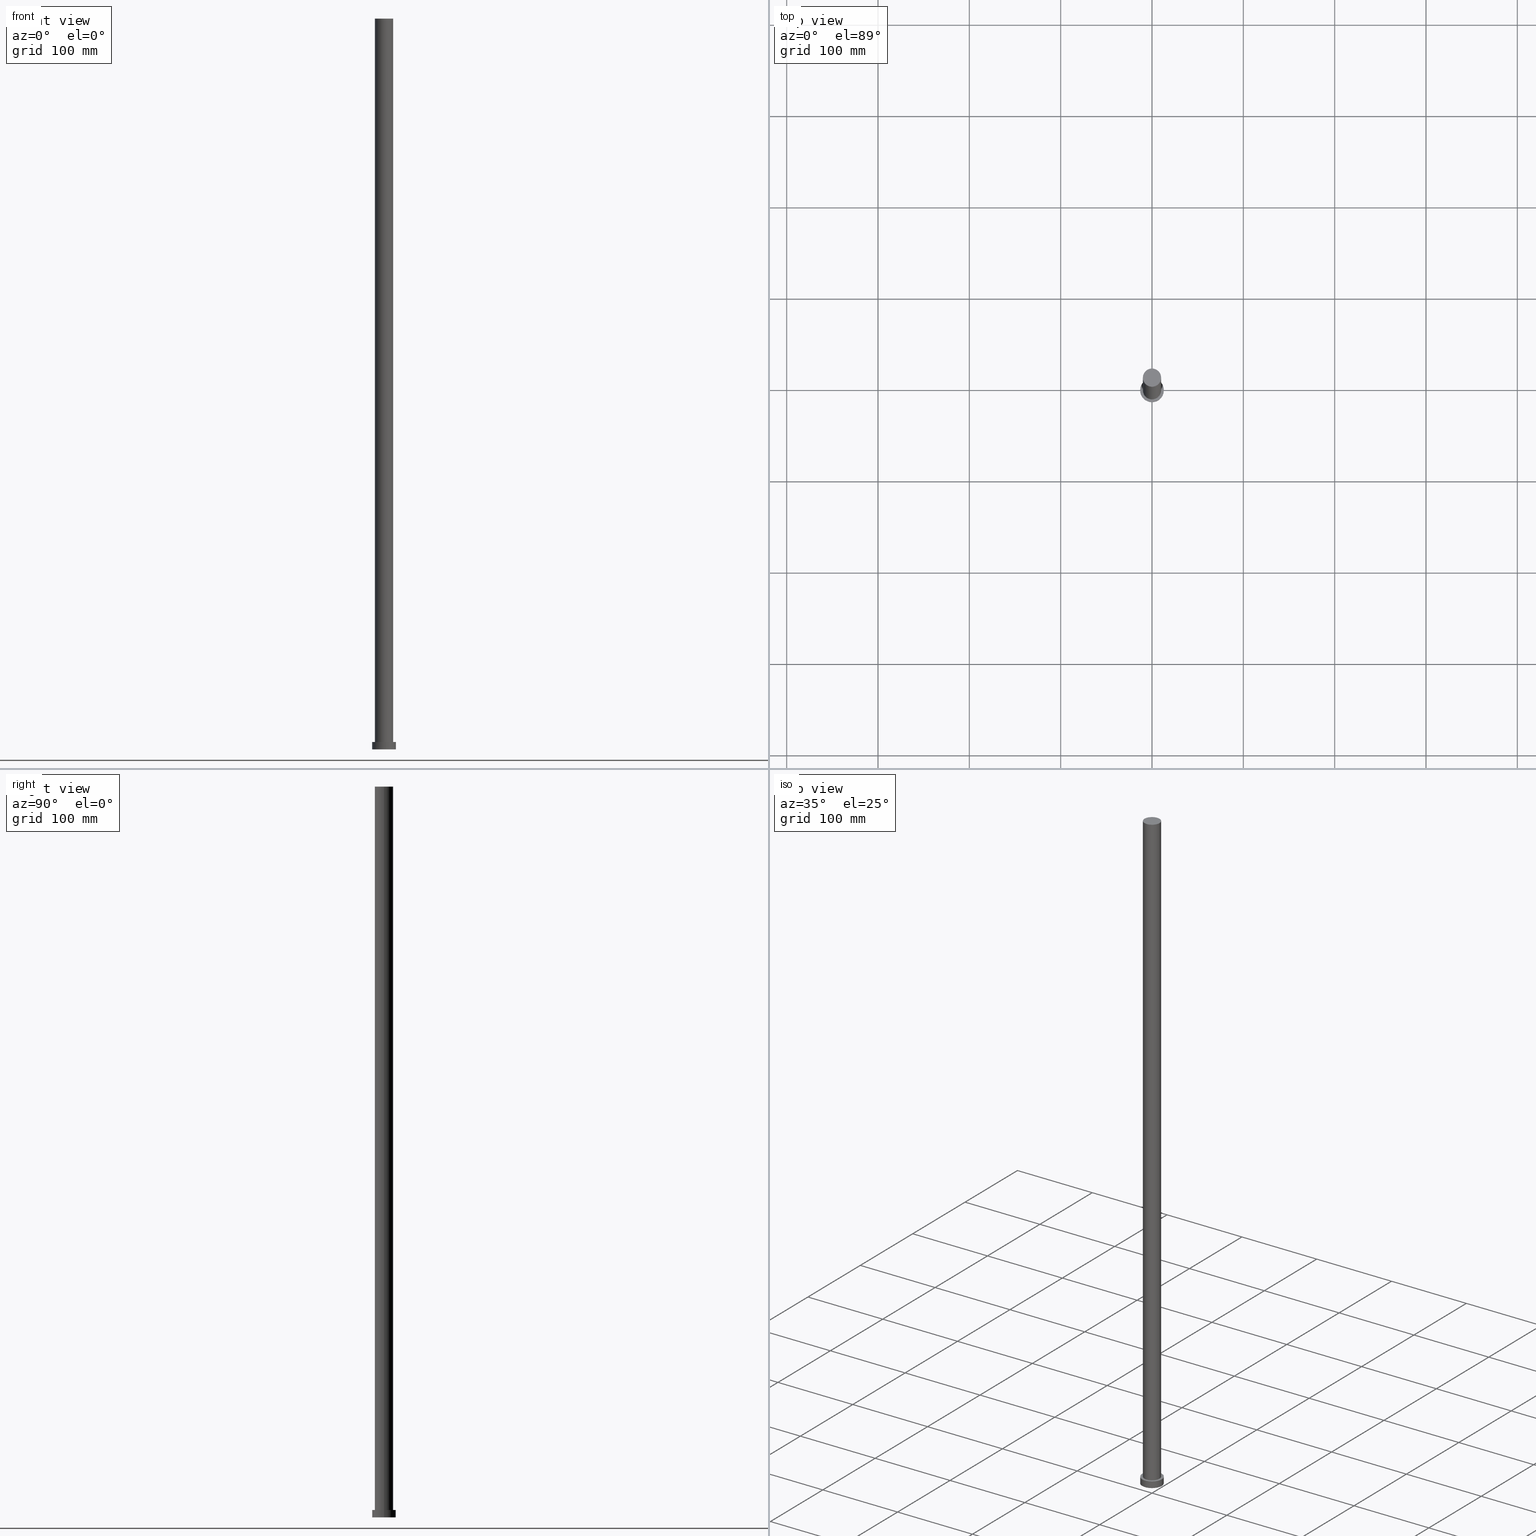
[diagram: canonical four-view strip — front | top / right | iso, engineering-drawing reading convention]
A machine part, canonical four-view strip (front | top / right | iso — engineering-drawing reading convention). The complete STEP part file that produces these views, byte-faithful:
ISO-10303-21;
HEADER;
FILE_DESCRIPTION (( 'STEP AP203' ),
    '1' );
FILE_NAME ('01eb.STEP',
    '2023-02-13T07:32:53',
    ( '' ),
    ( '' ),
    'SwSTEP 2.0',
    'SolidWorks 2019',
    '' );
FILE_SCHEMA (( 'CONFIG_CONTROL_DESIGN' ));
ENDSEC;

DATA;
#1 = APPROVAL_STATUS ( 'not_yet_approved' ) ;
#2 = ADVANCED_FACE ( 'NONE', ( #55, #12 ), #242, .T. ) ;
#3 = PLANE ( 'NONE',  #203 ) ;
#4 = DIRECTION ( 'NONE',  ( -0.000000000000000000, -0.000000000000000000, -1.000000000000000000 ) ) ;
#5 = VERTEX_POINT ( 'NONE', #244 ) ;
#6 = AXIS2_PLACEMENT_3D ( 'NONE', #231, #133, #235 ) ;
#7 = ORIENTED_EDGE ( 'NONE', *, *, #180, .F. ) ;
#8 = VECTOR ( 'NONE', #106, 1000.000000000000000 ) ;
#9 = APPLICATION_PROTOCOL_DEFINITION ( 'international standard', 'config_control_design', 1994, #67 ) ;
#10 = ORIENTED_EDGE ( 'NONE', *, *, #61, .F. ) ;
#11 = ORIENTED_EDGE ( 'NONE', *, *, #40, .T. ) ;
#12 = FACE_OUTER_BOUND ( 'NONE', #207, .T. ) ;
#13 = CARTESIAN_POINT ( 'NONE',  ( 0.000000000000000000, 0.000000000000000000, 8.000000000000000000 ) ) ;
#14 = DIRECTION ( 'NONE',  ( 0.000000000000000000, 0.000000000000000000, 1.000000000000000000 ) ) ;
#15 = SECURITY_CLASSIFICATION ( '', '', #224 ) ;
#16 = DIRECTION ( 'NONE',  ( -1.000000000000000000, 0.000000000000000000, 0.000000000000000000 ) ) ;
#17 = CARTESIAN_POINT ( 'NONE',  ( 0.000000000000000000, 0.000000000000000000, 8.000000000000000000 ) ) ;
#18 = DIRECTION ( 'NONE',  ( 0.000000000000000000, 0.000000000000000000, 1.000000000000000000 ) ) ;
#19 = CIRCLE ( 'NONE', #198, 13.00000000000000178 ) ;
#20 = CIRCLE ( 'NONE', #176, 10.00000000000000000 ) ;
#21 = DIRECTION ( 'NONE',  ( 1.000000000000000000, 0.000000000000000000, 0.000000000000000000 ) ) ;
#22 = APPROVAL ( #84, 'NEUR�EN�' ) ;
#23 = CIRCLE ( 'NONE', #130, 13.00000000000000178 ) ;
#24 = PRODUCT ( '01eb', '01eb', '', ( #145 ) ) ;
#25 = APPROVAL_PERSON_ORGANIZATION ( #93, #186, #86 ) ;
#26 = ORIENTED_EDGE ( 'NONE', *, *, #71, .F. ) ;
#27 = DIRECTION ( 'NONE',  ( -0.000000000000000000, -0.000000000000000000, -1.000000000000000000 ) ) ;
#28 = PRODUCT_DEFINITION ( 'NEZN�M�', '', #101, #227 ) ;
#29 = DIRECTION ( 'NONE',  ( 0.000000000000000000, 0.000000000000000000, 1.000000000000000000 ) ) ;
#30 = CALENDAR_DATE ( 2023, 13, 2 ) ;
#31 = CARTESIAN_POINT ( 'NONE',  ( -10.00000000000000000, 0.000000000000000000, 800.0000000000000000 ) ) ;
#32 = AXIS2_PLACEMENT_3D ( 'NONE', #192, #205, #254 ) ;
#33 = ADVANCED_BREP_SHAPE_REPRESENTATION ( '01eb', ( #154, #160 ), #75 ) ;
#34 = CARTESIAN_POINT ( 'NONE',  ( 0.000000000000000000, 0.000000000000000000, 8.000000000000000000 ) ) ;
#35 = DIRECTION ( 'NONE',  ( 0.000000000000000000, 0.000000000000000000, 1.000000000000000000 ) ) ;
#36 = CARTESIAN_POINT ( 'NONE',  ( 0.000000000000000000, 0.000000000000000000, 0.000000000000000000 ) ) ;
#37 = ORIENTED_EDGE ( 'NONE', *, *, #180, .T. ) ;
#38 = LINE ( 'NONE', #59, #120 ) ;
#39 = APPROVAL_STATUS ( 'not_yet_approved' ) ;
#40 = EDGE_CURVE ( 'NONE', #5, #223, #38, .T. ) ;
#41 = ORIENTED_EDGE ( 'NONE', *, *, #97, .F. ) ;
#42 = ORIENTED_EDGE ( 'NONE', *, *, #249, .T. ) ;
#43 = ADVANCED_FACE ( 'NONE', ( #104 ), #92, .T. ) ;
#44 = AXIS2_PLACEMENT_3D ( 'NONE', #200, #95, #69 ) ;
#45 = APPROVAL_DATE_TIME ( #119, #22 ) ;
#46 = CARTESIAN_POINT ( 'NONE',  ( 0.000000000000000000, 0.000000000000000000, 0.000000000000000000 ) ) ;
#47 = APPROVAL_ROLE ( '' ) ;
#48 = APPROVAL_DATE_TIME ( #213, #149 ) ;
#49 = APPROVAL_PERSON_ORGANIZATION ( #177, #149, #47 ) ;
#50 = CARTESIAN_POINT ( 'NONE',  ( 0.000000000000000000, 0.000000000000000000, 8.000000000000000000 ) ) ;
#51 = FACE_OUTER_BOUND ( 'NONE', #221, .T. ) ;
#52 = COORDINATED_UNIVERSAL_TIME_OFFSET ( 1, 0, .AHEAD. ) ;
#53 = APPLICATION_CONTEXT ( 'configuration controlled 3d designs of mechanical parts and assemblies' ) ;
#54 = CALENDAR_DATE ( 2023, 13, 2 ) ;
#55 = FACE_BOUND ( 'NONE', #147, .T. ) ;
#56 = DIRECTION ( 'NONE',  ( 1.000000000000000000, 0.000000000000000000, 0.000000000000000000 ) ) ;
#57 = VECTOR ( 'NONE', #91, 1000.000000000000000 ) ;
#58 = PERSON_AND_ORGANIZATION ( #144, #165 ) ;
#59 = CARTESIAN_POINT ( 'NONE',  ( 13.00000000000000178, 1.592040838891559293E-15, 8.000000000000000000 ) ) ;
#60 = ORIENTED_EDGE ( 'NONE', *, *, #245, .T. ) ;
#61 = EDGE_CURVE ( 'NONE', #64, #124, #66, .T. ) ;
#62 = EDGE_LOOP ( 'NONE', ( #129, #60 ) ) ;
#63 = LOCAL_TIME ( 8, 32, 53.00000000000000000, #188 ) ;
#64 = VERTEX_POINT ( 'NONE', #255 ) ;
#65 = CIRCLE ( 'NONE', #103, 10.00000000000000000 ) ;
#66 = LINE ( 'NONE', #94, #57 ) ;
#67 = APPLICATION_CONTEXT ( 'configuration controlled 3d designs of mechanical parts and assemblies' ) ;
#68 = EDGE_CURVE ( 'NONE', #223, #124, #111, .T. ) ;
#69 = DIRECTION ( 'NONE',  ( 1.000000000000000000, 0.000000000000000000, 0.000000000000000000 ) ) ;
#70 = FACE_OUTER_BOUND ( 'NONE', #183, .T. ) ;
#71 = EDGE_CURVE ( 'NONE', #184, #125, #79, .T. ) ;
#72 = DIRECTION ( 'NONE',  ( 1.000000000000000000, 0.000000000000000000, -0.000000000000000000 ) ) ;
#73 = DIRECTION ( 'NONE',  ( 0.000000000000000000, 0.000000000000000000, 1.000000000000000000 ) ) ;
#74 = DATE_AND_TIME ( #54, #99 ) ;
#75 =( GEOMETRIC_REPRESENTATION_CONTEXT ( 3 ) GLOBAL_UNCERTAINTY_ASSIGNED_CONTEXT ( ( #127 ) ) GLOBAL_UNIT_ASSIGNED_CONTEXT ( ( #137, #197, #157 ) ) REPRESENTATION_CONTEXT ( 'NONE', 'WORKASPACE' ) );
#76 = ORIENTED_EDGE ( 'NONE', *, *, #71, .T. ) ;
#77 = DIRECTION ( 'NONE',  ( 0.000000000000000000, 0.000000000000000000, 1.000000000000000000 ) ) ;
#78 = EDGE_LOOP ( 'NONE', ( #123, #190, #166, #76 ) ) ;
#79 = CIRCLE ( 'NONE', #138, 10.00000000000000000 ) ;
#80 = LOCAL_TIME ( 8, 32, 53.00000000000000000, #168 ) ;
#81 = PERSON_AND_ORGANIZATION ( #144, #165 ) ;
#82 = ADVANCED_FACE ( 'NONE', ( #150 ), #175, .T. ) ;
#83 = ORIENTED_EDGE ( 'NONE', *, *, #152, .F. ) ;
#84 = APPROVAL_STATUS ( 'not_yet_approved' ) ;
#85 = EDGE_LOOP ( 'NONE', ( #7, #11, #202, #10 ) ) ;
#86 = APPROVAL_ROLE ( '' ) ;
#87 = AXIS2_PLACEMENT_3D ( 'NONE', #164, #77, #163 ) ;
#88 = CC_DESIGN_PERSON_AND_ORGANIZATION_ASSIGNMENT ( #134, #210, ( #28 ) ) ;
#89 = DIRECTION ( 'NONE',  ( 1.000000000000000000, 0.000000000000000000, 0.000000000000000000 ) ) ;
#90 = APPROVAL_DATE_TIME ( #252, #186 ) ;
#91 = DIRECTION ( 'NONE',  ( -0.000000000000000000, -0.000000000000000000, -1.000000000000000000 ) ) ;
#92 = CYLINDRICAL_SURFACE ( 'NONE', #32, 10.00000000000000000 ) ;
#93 = PERSON_AND_ORGANIZATION ( #144, #165 ) ;
#94 = CARTESIAN_POINT ( 'NONE',  ( -13.00000000000000178, 0.000000000000000000, 8.000000000000000000 ) ) ;
#95 = DIRECTION ( 'NONE',  ( 0.000000000000000000, 0.000000000000000000, 1.000000000000000000 ) ) ;
#96 = CARTESIAN_POINT ( 'NONE',  ( 13.00000000000000178, 1.592040838891559293E-15, 0.000000000000000000 ) ) ;
#97 = EDGE_CURVE ( 'NONE', #124, #223, #23, .T. ) ;
#98 = AXIS2_PLACEMENT_3D ( 'NONE', #253, #187, #89 ) ;
#99 = LOCAL_TIME ( 8, 32, 53.00000000000000000, #110 ) ;
#100 = CARTESIAN_POINT ( 'NONE',  ( 0.000000000000000000, 0.000000000000000000, 0.000000000000000000 ) ) ;
#101 = PRODUCT_DEFINITION_FORMATION_WITH_SPECIFIED_SOURCE ( 'LIBOVOLN�', '', #24, .NOT_KNOWN. ) ;
#102 = EDGE_LOOP ( 'NONE', ( #161, #83, #182, #239 ) ) ;
#103 = AXIS2_PLACEMENT_3D ( 'NONE', #189, #14, #172 ) ;
#104 = FACE_OUTER_BOUND ( 'NONE', #78, .T. ) ;
#105 = DATE_AND_TIME ( #30, #63 ) ;
#106 = DIRECTION ( 'NONE',  ( -0.000000000000000000, -0.000000000000000000, -1.000000000000000000 ) ) ;
#107 = DIRECTION ( 'NONE',  ( 0.000000000000000000, 0.000000000000000000, 1.000000000000000000 ) ) ;
#108 = DATE_TIME_ROLE ( 'creation_date' ) ;
#109 = CC_DESIGN_PERSON_AND_ORGANIZATION_ASSIGNMENT ( #126, #151, ( #101 ) ) ;
#110 = COORDINATED_UNIVERSAL_TIME_OFFSET ( 1, 0, .AHEAD. ) ;
#111 = CIRCLE ( 'NONE', #98, 13.00000000000000178 ) ;
#112 = APPROVAL_PERSON_ORGANIZATION ( #81, #22, #167 ) ;
#113 = CARTESIAN_POINT ( 'NONE',  ( 0.000000000000000000, 0.000000000000000000, 800.0000000000000000 ) ) ;
#114 = DIRECTION ( 'NONE',  ( -0.000000000000000000, -0.000000000000000000, -1.000000000000000000 ) ) ;
#115 = CC_DESIGN_PERSON_AND_ORGANIZATION_ASSIGNMENT ( #174, #132, ( #101 ) ) ;
#116 = FACE_OUTER_BOUND ( 'NONE', #85, .T. ) ;
#117 = SHAPE_DEFINITION_REPRESENTATION ( #217, #33 ) ;
#118 = DIRECTION ( 'NONE',  ( 1.000000000000000000, 0.000000000000000000, 0.000000000000000000 ) ) ;
#119 = DATE_AND_TIME ( #143, #121 ) ;
#120 = VECTOR ( 'NONE', #27, 1000.000000000000000 ) ;
#121 = LOCAL_TIME ( 8, 32, 53.00000000000000000, #52 ) ;
#122 = VERTEX_POINT ( 'NONE', #31 ) ;
#123 = ORIENTED_EDGE ( 'NONE', *, *, #234, .F. ) ;
#124 = VERTEX_POINT ( 'NONE', #204 ) ;
#125 = VERTEX_POINT ( 'NONE', #128 ) ;
#126 = PERSON_AND_ORGANIZATION ( #144, #165 ) ;
#127 = UNCERTAINTY_MEASURE_WITH_UNIT (LENGTH_MEASURE( 1.000000000000000082E-05 ), #137, 'distance_accuracy_value', 'NONE');
#128 = CARTESIAN_POINT ( 'NONE',  ( 10.00000000000000000, 1.224646799147353256E-15, 8.000000000000000000 ) ) ;
#129 = ORIENTED_EDGE ( 'NONE', *, *, #158, .T. ) ;
#130 = AXIS2_PLACEMENT_3D ( 'NONE', #46, #29, #136 ) ;
#131 = CC_DESIGN_APPROVAL ( #149, ( #15 ) ) ;
#132 = PERSON_AND_ORGANIZATION_ROLE ( 'design_supplier' ) ;
#133 = DIRECTION ( 'NONE',  ( 0.000000000000000000, 0.000000000000000000, 1.000000000000000000 ) ) ;
#134 = PERSON_AND_ORGANIZATION ( #144, #165 ) ;
#135 = CC_DESIGN_PERSON_AND_ORGANIZATION_ASSIGNMENT ( #58, #201, ( #24 ) ) ;
#136 = DIRECTION ( 'NONE',  ( 1.000000000000000000, 0.000000000000000000, 0.000000000000000000 ) ) ;
#137 =( LENGTH_UNIT ( ) NAMED_UNIT ( * ) SI_UNIT ( .MILLI., .METRE. ) );
#138 = AXIS2_PLACEMENT_3D ( 'NONE', #153, #107, #155 ) ;
#139 = VECTOR ( 'NONE', #4, 1000.000000000000000 ) ;
#140 = DIRECTION ( 'NONE',  ( 0.000000000000000000, 0.000000000000000000, 1.000000000000000000 ) ) ;
#141 = CYLINDRICAL_SURFACE ( 'NONE', #236, 10.00000000000000000 ) ;
#142 = AXIS2_PLACEMENT_3D ( 'NONE', #17, #114, #178 ) ;
#143 = CALENDAR_DATE ( 2023, 13, 2 ) ;
#144 = PERSON ( 'NEUR�EN�', 'NEUR�EN�', 'NEUR�EN�', ('NEUR�EN�'), ('NEUR�EN�'), ('NEUR�EN�') ) ;
#145 = MECHANICAL_CONTEXT ( 'NONE', #53, 'mechanical' ) ;
#146 = PRODUCT_RELATED_PRODUCT_CATEGORY ( 'detail', '', ( #24 ) ) ;
#147 = EDGE_LOOP ( 'NONE', ( #26, #229 ) ) ;
#148 = CC_DESIGN_APPROVAL ( #22, ( #28 ) ) ;
#149 = APPROVAL ( #1, 'NEUR�EN�' ) ;
#150 = FACE_OUTER_BOUND ( 'NONE', #62, .T. ) ;
#151 = PERSON_AND_ORGANIZATION_ROLE ( 'creator' ) ;
#152 = EDGE_CURVE ( 'NONE', #64, #5, #19, .T. ) ;
#153 = CARTESIAN_POINT ( 'NONE',  ( 0.000000000000000000, 0.000000000000000000, 8.000000000000000000 ) ) ;
#154 = MANIFOLD_SOLID_BREP ( 'P�idat vysunut�m3', #195 ) ;
#155 = DIRECTION ( 'NONE',  ( 1.000000000000000000, 0.000000000000000000, 0.000000000000000000 ) ) ;
#156 = EDGE_CURVE ( 'NONE', #122, #184, #248, .T. ) ;
#157 =( NAMED_UNIT ( * ) SI_UNIT ( $, .STERADIAN. ) SOLID_ANGLE_UNIT ( ) );
#158 = EDGE_CURVE ( 'NONE', #122, #241, #65, .T. ) ;
#159 = CARTESIAN_POINT ( 'NONE',  ( 10.00000000000000000, 1.224646799147353256E-15, 800.0000000000000000 ) ) ;
#160 = AXIS2_PLACEMENT_3D ( 'NONE', #100, #73, #56 ) ;
#161 = ORIENTED_EDGE ( 'NONE', *, *, #40, .F. ) ;
#162 = ADVANCED_FACE ( 'NONE', ( #250 ), #228, .T. ) ;
#163 = DIRECTION ( 'NONE',  ( 1.000000000000000000, 0.000000000000000000, -0.000000000000000000 ) ) ;
#164 = CARTESIAN_POINT ( 'NONE',  ( 0.000000000000000000, 0.000000000000000000, 8.000000000000000000 ) ) ;
#165 = ORGANIZATION ( 'NEUR�EN�', 'NEUR�EN�', '' ) ;
#166 = ORIENTED_EDGE ( 'NONE', *, *, #156, .T. ) ;
#167 = APPROVAL_ROLE ( '' ) ;
#168 = COORDINATED_UNIVERSAL_TIME_OFFSET ( 1, 0, .AHEAD. ) ;
#169 = DIRECTION ( 'NONE',  ( 0.000000000000000000, 0.000000000000000000, 1.000000000000000000 ) ) ;
#170 = CC_DESIGN_APPROVAL ( #186, ( #101 ) ) ;
#171 = CALENDAR_DATE ( 2023, 13, 2 ) ;
#172 = DIRECTION ( 'NONE',  ( 1.000000000000000000, 0.000000000000000000, 0.000000000000000000 ) ) ;
#173 = ORIENTED_EDGE ( 'NONE', *, *, #156, .F. ) ;
#174 = PERSON_AND_ORGANIZATION ( #144, #165 ) ;
#175 = PLANE ( 'NONE',  #6 ) ;
#176 = AXIS2_PLACEMENT_3D ( 'NONE', #50, #35, #21 ) ;
#177 = PERSON_AND_ORGANIZATION ( #144, #165 ) ;
#178 = DIRECTION ( 'NONE',  ( -1.000000000000000000, 0.000000000000000000, 0.000000000000000000 ) ) ;
#179 = APPLICATION_PROTOCOL_DEFINITION ( 'international standard', 'config_control_design', 1994, #53 ) ;
#180 = EDGE_CURVE ( 'NONE', #5, #64, #215, .T. ) ;
#181 = DIRECTION ( 'NONE',  ( -0.000000000000000000, -0.000000000000000000, -1.000000000000000000 ) ) ;
#182 = ORIENTED_EDGE ( 'NONE', *, *, #61, .T. ) ;
#183 = EDGE_LOOP ( 'NONE', ( #41, #247 ) ) ;
#184 = VERTEX_POINT ( 'NONE', #238 ) ;
#185 = ORIENTED_EDGE ( 'NONE', *, *, #234, .T. ) ;
#186 = APPROVAL ( #39, 'NEUR�EN�' ) ;
#187 = DIRECTION ( 'NONE',  ( 0.000000000000000000, 0.000000000000000000, 1.000000000000000000 ) ) ;
#188 = COORDINATED_UNIVERSAL_TIME_OFFSET ( 1, 0, .AHEAD. ) ;
#189 = CARTESIAN_POINT ( 'NONE',  ( 0.000000000000000000, 0.000000000000000000, 800.0000000000000000 ) ) ;
#190 = ORIENTED_EDGE ( 'NONE', *, *, #158, .F. ) ;
#191 = CC_DESIGN_DATE_AND_TIME_ASSIGNMENT ( #74, #194, ( #15 ) ) ;
#192 = CARTESIAN_POINT ( 'NONE',  ( 0.000000000000000000, 0.000000000000000000, 800.0000000000000000 ) ) ;
#193 = CARTESIAN_POINT ( 'NONE',  ( 0.000000000000000000, 0.000000000000000000, 8.000000000000000000 ) ) ;
#194 = DATE_TIME_ROLE ( 'classification_date' ) ;
#195 = CLOSED_SHELL ( 'NONE', ( #220, #240, #162, #2, #196, #43, #82 ) ) ;
#196 = ADVANCED_FACE ( 'NONE', ( #70 ), #3, .F. ) ;
#197 =( NAMED_UNIT ( * ) PLANE_ANGLE_UNIT ( ) SI_UNIT ( $, .RADIAN. ) );
#198 = AXIS2_PLACEMENT_3D ( 'NONE', #13, #169, #209 ) ;
#199 = CC_DESIGN_PERSON_AND_ORGANIZATION_ASSIGNMENT ( #226, #208, ( #15 ) ) ;
#200 = CARTESIAN_POINT ( 'NONE',  ( 0.000000000000000000, 0.000000000000000000, 800.0000000000000000 ) ) ;
#201 = PERSON_AND_ORGANIZATION_ROLE ( 'design_owner' ) ;
#202 = ORIENTED_EDGE ( 'NONE', *, *, #68, .T. ) ;
#203 = AXIS2_PLACEMENT_3D ( 'NONE', #36, #140, #72 ) ;
#204 = CARTESIAN_POINT ( 'NONE',  ( -13.00000000000000178, 0.000000000000000000, 0.000000000000000000 ) ) ;
#205 = DIRECTION ( 'NONE',  ( -0.000000000000000000, -0.000000000000000000, -1.000000000000000000 ) ) ;
#206 = DIRECTION ( 'NONE',  ( -0.000000000000000000, -0.000000000000000000, -1.000000000000000000 ) ) ;
#207 = EDGE_LOOP ( 'NONE', ( #246, #37 ) ) ;
#208 = PERSON_AND_ORGANIZATION_ROLE ( 'classification_officer' ) ;
#209 = DIRECTION ( 'NONE',  ( 1.000000000000000000, 0.000000000000000000, 0.000000000000000000 ) ) ;
#210 = PERSON_AND_ORGANIZATION_ROLE ( 'creator' ) ;
#211 = DIRECTION ( 'NONE',  ( -1.000000000000000000, 0.000000000000000000, 0.000000000000000000 ) ) ;
#212 = CARTESIAN_POINT ( 'NONE',  ( 10.00000000000000000, 1.224646799147353256E-15, 800.0000000000000000 ) ) ;
#213 = DATE_AND_TIME ( #233, #243 ) ;
#214 = LINE ( 'NONE', #212, #139 ) ;
#215 = CIRCLE ( 'NONE', #222, 13.00000000000000178 ) ;
#216 = CYLINDRICAL_SURFACE ( 'NONE', #142, 13.00000000000000178 ) ;
#217 = PRODUCT_DEFINITION_SHAPE ( 'NONE', 'NONE',  #28 ) ;
#218 = CC_DESIGN_DATE_AND_TIME_ASSIGNMENT ( #105, #108, ( #28 ) ) ;
#219 = AXIS2_PLACEMENT_3D ( 'NONE', #193, #206, #16 ) ;
#220 = ADVANCED_FACE ( 'NONE', ( #51 ), #141, .T. ) ;
#221 = EDGE_LOOP ( 'NONE', ( #251, #185, #42, #173 ) ) ;
#222 = AXIS2_PLACEMENT_3D ( 'NONE', #34, #18, #118 ) ;
#223 = VERTEX_POINT ( 'NONE', #96 ) ;
#224 = SECURITY_CLASSIFICATION_LEVEL ( 'unclassified' ) ;
#225 = CARTESIAN_POINT ( 'NONE',  ( -10.00000000000000000, 0.000000000000000000, 800.0000000000000000 ) ) ;
#226 = PERSON_AND_ORGANIZATION ( #144, #165 ) ;
#227 = DESIGN_CONTEXT ( 'detailed design', #67, 'design' ) ;
#228 = CYLINDRICAL_SURFACE ( 'NONE', #219, 13.00000000000000178 ) ;
#229 = ORIENTED_EDGE ( 'NONE', *, *, #249, .F. ) ;
#230 = COORDINATED_UNIVERSAL_TIME_OFFSET ( 1, 0, .AHEAD. ) ;
#231 = CARTESIAN_POINT ( 'NONE',  ( 0.000000000000000000, 0.000000000000000000, 800.0000000000000000 ) ) ;
#232 = CC_DESIGN_SECURITY_CLASSIFICATION ( #15, ( #101 ) ) ;
#233 = CALENDAR_DATE ( 2023, 13, 2 ) ;
#234 = EDGE_CURVE ( 'NONE', #241, #125, #214, .T. ) ;
#235 = DIRECTION ( 'NONE',  ( 1.000000000000000000, 0.000000000000000000, -0.000000000000000000 ) ) ;
#236 = AXIS2_PLACEMENT_3D ( 'NONE', #113, #181, #211 ) ;
#237 = CIRCLE ( 'NONE', #44, 10.00000000000000000 ) ;
#238 = CARTESIAN_POINT ( 'NONE',  ( -10.00000000000000000, 0.000000000000000000, 8.000000000000000000 ) ) ;
#239 = ORIENTED_EDGE ( 'NONE', *, *, #97, .T. ) ;
#240 = ADVANCED_FACE ( 'NONE', ( #116 ), #216, .T. ) ;
#241 = VERTEX_POINT ( 'NONE', #159 ) ;
#242 = PLANE ( 'NONE',  #87 ) ;
#243 = LOCAL_TIME ( 8, 32, 53.00000000000000000, #230 ) ;
#244 = CARTESIAN_POINT ( 'NONE',  ( 13.00000000000000178, 1.592040838891559293E-15, 8.000000000000000000 ) ) ;
#245 = EDGE_CURVE ( 'NONE', #241, #122, #237, .T. ) ;
#246 = ORIENTED_EDGE ( 'NONE', *, *, #152, .T. ) ;
#247 = ORIENTED_EDGE ( 'NONE', *, *, #68, .F. ) ;
#248 = LINE ( 'NONE', #225, #8 ) ;
#249 = EDGE_CURVE ( 'NONE', #125, #184, #20, .T. ) ;
#250 = FACE_OUTER_BOUND ( 'NONE', #102, .T. ) ;
#251 = ORIENTED_EDGE ( 'NONE', *, *, #245, .F. ) ;
#252 = DATE_AND_TIME ( #171, #80 ) ;
#253 = CARTESIAN_POINT ( 'NONE',  ( 0.000000000000000000, 0.000000000000000000, 0.000000000000000000 ) ) ;
#254 = DIRECTION ( 'NONE',  ( -1.000000000000000000, 0.000000000000000000, 0.000000000000000000 ) ) ;
#255 = CARTESIAN_POINT ( 'NONE',  ( -13.00000000000000178, 0.000000000000000000, 8.000000000000000000 ) ) ;
ENDSEC;
END-ISO-10303-21;
